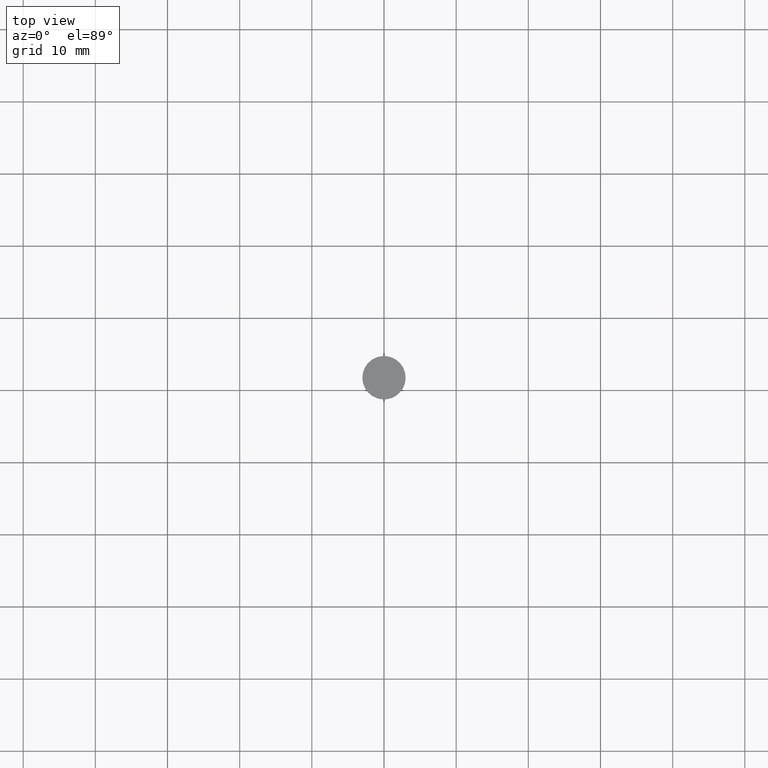
[diagram: clean part render]
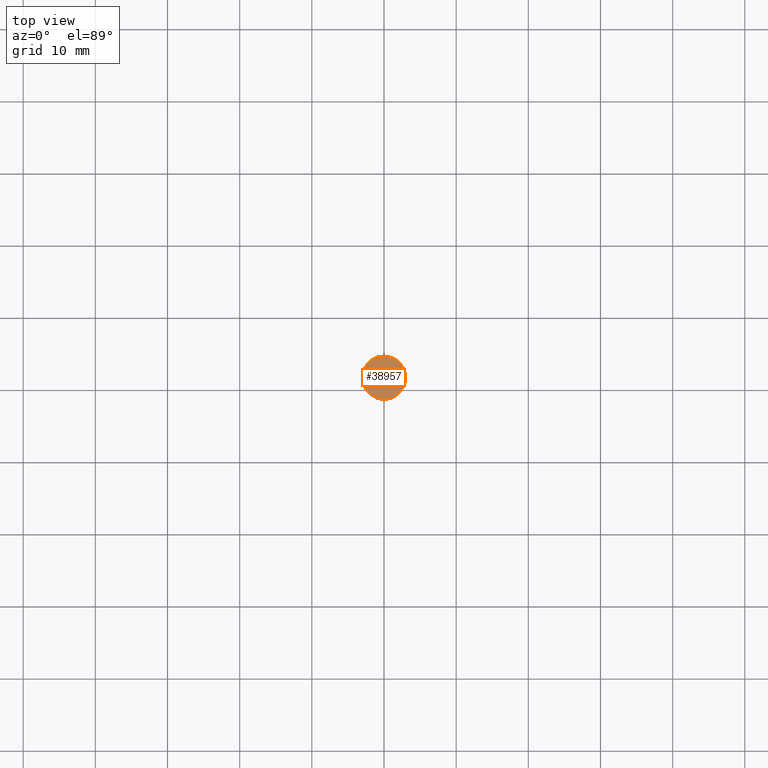
[diagram: same view with one face highlighted and labeled with its STEP entity id]
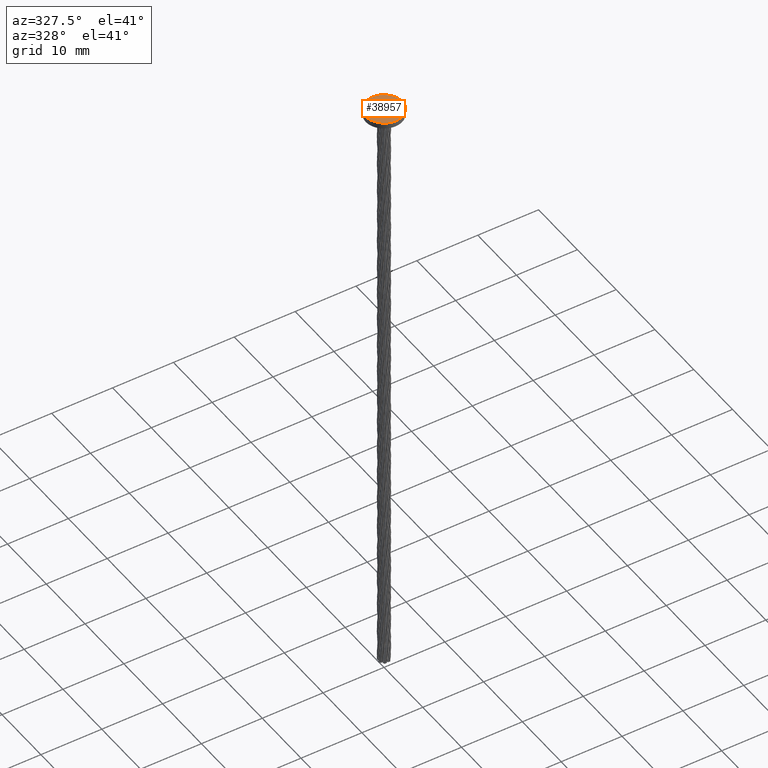
[diagram: same view with one face highlighted and labeled with its STEP entity id]
A machine part, top view. The second image highlights one B-rep face of the part: STEP entity #38957.
A second angle (auxiliary view) of the same face is appended — the face is thin or edge-on in the first view.
In plain terms, the highlighted planar face has unit normal (0, 0, 1).
Its self-contained STEP definition (entity closure, byte-faithful):
#4084 = AXIS2_PLACEMENT_3D ( 'NONE', #31242, #7800, #28189 ) ;
#4149 = CIRCLE ( 'NONE', #4084, 3.000000000000000444 ) ;
#6573 = EDGE_CURVE ( 'NONE', #16909, #16909, #4149, .T. ) ;
#7800 = DIRECTION ( 'NONE',  ( 0.000000000000000000, 0.000000000000000000, 1.000000000000000000 ) ) ;
#10142 = DIRECTION ( 'NONE',  ( 1.000000000000000000, 0.000000000000000000, -0.000000000000000000 ) ) ;
#13350 = CARTESIAN_POINT ( 'NONE',  ( 3.000000000000000444, 0.000000000000000000, 1.000000000000000000 ) ) ;
#16909 = VERTEX_POINT ( 'NONE', #13350 ) ;
#17950 = FACE_OUTER_BOUND ( 'NONE', #34653, .T. ) ;
#28189 = DIRECTION ( 'NONE',  ( 1.000000000000000000, 0.000000000000000000, 0.000000000000000000 ) ) ;
#31242 = CARTESIAN_POINT ( 'NONE',  ( 0.000000000000000000, 0.000000000000000000, 1.000000000000000000 ) ) ;
#34653 = EDGE_LOOP ( 'NONE', ( #37450 ) ) ;
#36493 = CARTESIAN_POINT ( 'NONE',  ( 0.000000000000000000, 0.000000000000000000, 1.000000000000000000 ) ) ;
#37450 = ORIENTED_EDGE ( 'NONE', *, *, #6573, .T. ) ;
#38957 = ADVANCED_FACE ( 'NONE', ( #17950 ), #39852, .T. ) ;
#39705 = DIRECTION ( 'NONE',  ( 0.000000000000000000, 0.000000000000000000, 1.000000000000000000 ) ) ;
#39852 = PLANE ( 'NONE',  #41327 ) ;
#41327 = AXIS2_PLACEMENT_3D ( 'NONE', #36493, #39705, #10142 ) ;